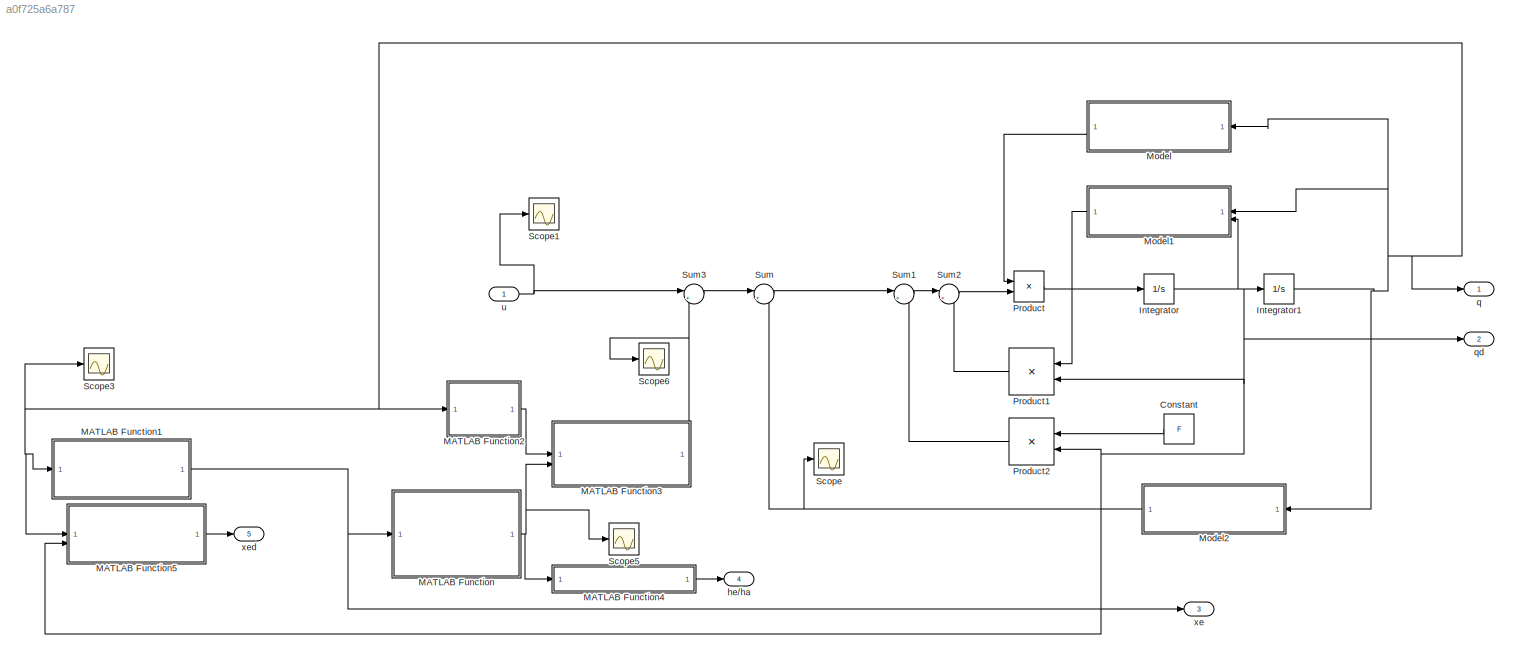
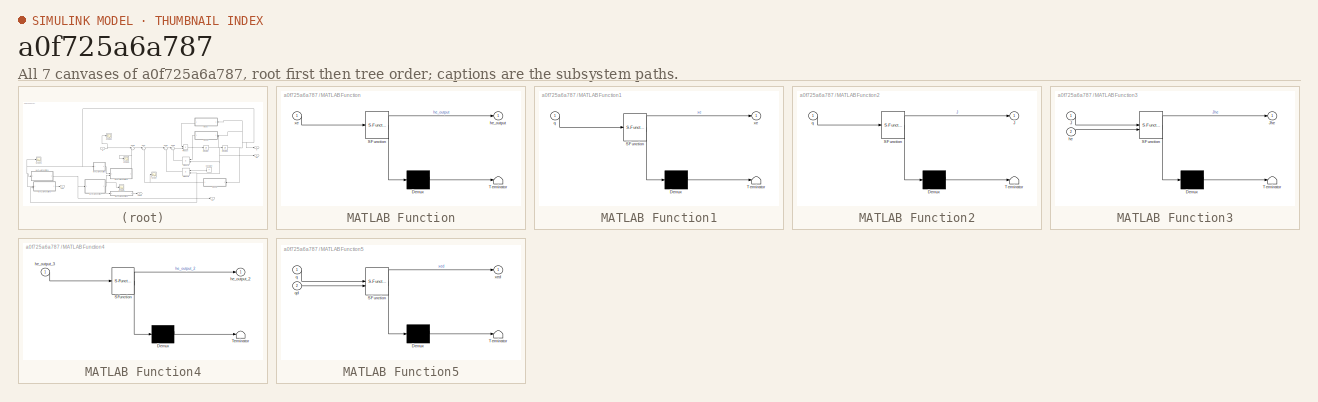
[diagram: thumbnail index - all 7 canvases of the model, root first then tree order]
MODEL slx_a0f725a6a787
KIND model
CONFIG AbsTol = auto
CONFIG EnableMultiTasking = off
CONFIG FixedStep = auto
CONFIG MaxStep = auto
CONFIG MinStep = auto
CONFIG RelTol = 1e-3
CONFIG SampleTimeConstraint = Unconstrained
CONFIG SolverName = VariableStepAuto
CONFIG StartTime = 0.0
CONFIG StopTime = 10.0
BLOCK [Constant] Constant
  Value = F
BLOCK [Integrator] Integrator
BLOCK [Integrator] Integrator1
  InitialCondition = init
BLOCK [SubSystem] MATLAB Function
  ErrorFcn = Stateflow.Translate.translate
  LibrarySourceBlock = simulink/User-Defined\nFunctions/MATLAB Function
  PermitHierarchicalResolution = ExplicitOnly
  SFBlockType = MATLAB Function
  TreatAsAtomicUnit = on
BLOCK [Demux] MATLAB Function/ Demux 
  Outputs = 1
BLOCK [S-Function] MATLAB Function/ SFunction 
  EnableBusSupport = on
  FunctionName = sf_sfun
  Parameters = kx,xr
  PortCounts = [1 2]
  SFcnIsStateOwnerBlock = off
  SFunctionDeploymentMode = off
  Tag = Stateflow S-Function 2
BLOCK [Terminator] MATLAB Function/ Terminator 
BLOCK [Outport] MATLAB Function/he_output
BLOCK [Inport] MATLAB Function/xe
BLOCK [SubSystem] MATLAB Function1
  ErrorFcn = Stateflow.Translate.translate
  LibrarySourceBlock = simulink/User-Defined\nFunctions/MATLAB Function
  PermitHierarchicalResolution = ExplicitOnly
  SFBlockType = MATLAB Function
  TreatAsAtomicUnit = on
BLOCK [Demux] MATLAB Function1/ Demux 
  Outputs = 1
BLOCK [S-Function] MATLAB Function1/ SFunction 
  EnableBusSupport = on
  FunctionName = sf_sfun
  Parameters = a_1,a_2
  PortCounts = [1 2]
  SFcnIsStateOwnerBlock = off
  SFunctionDeploymentMode = off
  Tag = Stateflow S-Function 1
BLOCK [Terminator] MATLAB Function1/ Terminator 
BLOCK [Inport] MATLAB Function1/q
BLOCK [Outport] MATLAB Function1/xe
BLOCK [SubSystem] MATLAB Function2
  ErrorFcn = Stateflow.Translate.translate
  LibrarySourceBlock = simulink/User-Defined\nFunctions/MATLAB Function
  PermitHierarchicalResolution = ExplicitOnly
  SFBlockType = MATLAB Function
  TreatAsAtomicUnit = on
BLOCK [Demux] MATLAB Function2/ Demux 
  Outputs = 1
BLOCK [S-Function] MATLAB Function2/ SFunction 
  EnableBusSupport = on
  FunctionName = sf_sfun
  Parameters = a_1,a_2
  PortCounts = [1 2]
  SFcnIsStateOwnerBlock = off
  SFunctionDeploymentMode = off
  Tag = Stateflow S-Function 3
BLOCK [Terminator] MATLAB Function2/ Terminator 
BLOCK [Outport] MATLAB Function2/J
BLOCK [Inport] MATLAB Function2/q
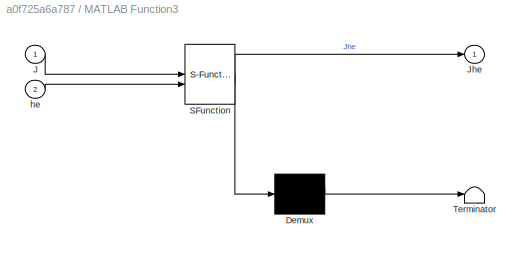
BLOCK [SubSystem] MATLAB Function3
  ErrorFcn = Stateflow.Translate.translate
  LibrarySourceBlock = simulink/User-Defined\nFunctions/MATLAB Function
  PermitHierarchicalResolution = ExplicitOnly
  SFBlockType = MATLAB Function
  TreatAsAtomicUnit = on
BLOCK [Demux] MATLAB Function3/ Demux 
  Outputs = 1
BLOCK [S-Function] MATLAB Function3/ SFunction 
  EnableBusSupport = on
  FunctionName = sf_sfun
  PortCounts = [2 2]
  SFcnIsStateOwnerBlock = off
  SFunctionDeploymentMode = off
  Tag = Stateflow S-Function 4
BLOCK [Terminator] MATLAB Function3/ Terminator 
BLOCK [Inport] MATLAB Function3/J
BLOCK [Outport] MATLAB Function3/Jhe
BLOCK [Inport] MATLAB Function3/he
  Port = 2
BLOCK [SubSystem] MATLAB Function4
  ErrorFcn = Stateflow.Translate.translate
  LibrarySourceBlock = simulink/User-Defined\nFunctions/MATLAB Function
  PermitHierarchicalResolution = ExplicitOnly
  SFBlockType = MATLAB Function
  TreatAsAtomicUnit = on
BLOCK [Demux] MATLAB Function4/ Demux 
  Outputs = 1
BLOCK [S-Function] MATLAB Function4/ SFunction 
  EnableBusSupport = on
  FunctionName = sf_sfun
  PortCounts = [1 2]
  SFcnIsStateOwnerBlock = off
  SFunctionDeploymentMode = off
  Tag = Stateflow S-Function 5
BLOCK [Terminator] MATLAB Function4/ Terminator 
BLOCK [Outport] MATLAB Function4/he_output_2
BLOCK [Inport] MATLAB Function4/he_output_3
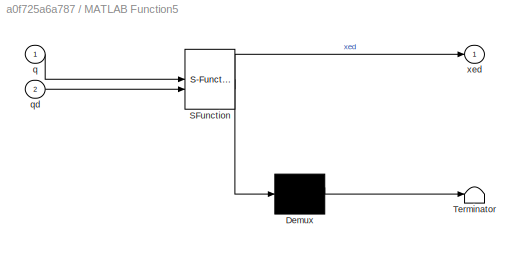
BLOCK [SubSystem] MATLAB Function5
  ErrorFcn = Stateflow.Translate.translate
  LibrarySourceBlock = simulink/User-Defined\nFunctions/MATLAB Function
  PermitHierarchicalResolution = ExplicitOnly
  SFBlockType = MATLAB Function
  TreatAsAtomicUnit = on
BLOCK [Demux] MATLAB Function5/ Demux 
  Outputs = 1
BLOCK [S-Function] MATLAB Function5/ SFunction 
  EnableBusSupport = on
  FunctionName = sf_sfun
  Parameters = a_1,a_2
  PortCounts = [2 2]
  SFcnIsStateOwnerBlock = off
  SFunctionDeploymentMode = off
  Tag = Stateflow S-Function 6
BLOCK [Terminator] MATLAB Function5/ Terminator 
BLOCK [Inport] MATLAB Function5/q
BLOCK [Inport] MATLAB Function5/qd
  Port = 2
BLOCK [Outport] MATLAB Function5/xed
BLOCK [ModelReference] Model
  ModelNameDialog = B_sim_matrix.slx
  ModelReferenceVersion = 13.0
BLOCK [ModelReference] Model1
  ModelNameDialog = C_sim_matrix.slx
  ModelReferenceVersion = 1.2
BLOCK [ModelReference] Model2
  ModelNameDialog = g_vector.slx
  ModelReferenceVersion = 1.8
BLOCK [Product] Product
  Multiplication = Matrix(*)
BLOCK [Product] Product1
  Multiplication = Matrix(*)
BLOCK [Product] Product2
  Multiplication = Matrix(*)
BLOCK [Scope] Scope
  Floating = off
  NumInputPorts = 1
  ScopeSpecificationString = Simulink.scopes.TimeScopeBlockCfg('CurrentConfiguration', extmgr.ConfigurationSet(extmgr.Configuration('Core','General UI',true),extmgr.Configuration('Core','Source UI',true),extmgr.Configuration('Sources','WiredSimulink',true,'DataLoggingLimitDataPoints',true,'DataLoggingSaveFormat','Array','DataLoggingDecimation','1','DataLoggingDecimateData',true,'DataLoggingVariableName','ScopeData1'),extmgr.C...<+1698ch>
BLOCK [Scope] Scope1
  Floating = off
  NumInputPorts = 1
  ScopeSpecificationString = Simulink.scopes.TimeScopeBlockCfg('CurrentConfiguration', extmgr.ConfigurationSet(extmgr.Configuration('Core','General UI',true),extmgr.Configuration('Core','Source UI',true),extmgr.Configuration('Sources','WiredSimulink',true,'DataLoggingVariableName','ScopeData2','DataLoggingLimitDataPoints',true,'DataLoggingSaveFormat','Array','DataLoggingDecimation','1','DataLoggingDecimateData',true),extmgr.C...<+899ch>
BLOCK [Scope] Scope3
  Floating = off
  NumInputPorts = 1
  ScopeSpecificationString = Simulink.scopes.TimeScopeBlockCfg('CurrentConfiguration', extmgr.ConfigurationSet(extmgr.Configuration('Core','General UI',true),extmgr.Configuration('Core','Source UI',true),extmgr.Configuration('Sources','WiredSimulink',true,'DataLoggingVariableName','ScopeData3'),extmgr.Configuration('Visuals','Time Domain',true,'SerializedDisplays',{struct('MinYLimReal','-2.32902','MaxYLimReal','4.36795','YLab...<+1417ch>
BLOCK [Scope] Scope5
  Floating = off
  NumInputPorts = 1
  ScopeSpecificationString = Simulink.scopes.TimeScopeBlockCfg('CurrentConfiguration', extmgr.ConfigurationSet(extmgr.Configuration('Core','General UI',true),extmgr.Configuration('Core','Source UI',true),extmgr.Configuration('Sources','WiredSimulink',true,'DataLoggingVariableName','ScopeData4'),extmgr.Configuration('Visuals','Time Domain',true,'SerializedDisplays',{struct('MinYLimReal','-22.98617','MaxYLimReal','208.82188','Y...<+1471ch>
BLOCK [Scope] Scope6
  Floating = off
  NumInputPorts = 1
  ScopeSpecificationString = Simulink.scopes.TimeScopeBlockCfg('CurrentConfiguration', extmgr.ConfigurationSet(extmgr.Configuration('Core','General UI',true),extmgr.Configuration('Core','Source UI',true),extmgr.Configuration('Sources','WiredSimulink',true),extmgr.Configuration('Visuals','Time Domain',true,'SerializedDisplays',{struct('MinYLimReal','-22.98617','MaxYLimReal','208.82188','YLabelReal','','MinYLimMag','0.00000','M...<+1416ch>
BLOCK [Sum] Sum
  Inputs = |+-
BLOCK [Sum] Sum1
  Inputs = |+-
BLOCK [Sum] Sum2
  Inputs = |+-
BLOCK [Sum] Sum3
  Inputs = |+-
BLOCK [Outport] he//ha
  Port = 4
  PortDimensions = 2
BLOCK [Outport] q
  PortDimensions = 2
BLOCK [Outport] qd
  Port = 2
  PortDimensions = 2
BLOCK [Inport] u
  PortDimensions = 2
BLOCK [Outport] xe
  Port = 3
  PortDimensions = 2
BLOCK [Outport] xed
  Port = 5
  PortDimensions = 2
LINE Constant:1 -> Product2:1
NET Integrator1:1 -> MATLAB Function1:1, MATLAB Function2:1, MATLAB Function5:1, Model1:1, Model2:1, Model:1, Scope3:1, q:1
NET Integrator:1 -> Integrator1:1, MATLAB Function5:2, Model1:2, Product1:2, Product2:2, qd:1
NET MATLAB Function1:1 -> MATLAB Function:1, xe:1
LINE MATLAB Function2:1 -> MATLAB Function3:1
NET MATLAB Function3:1 -> Scope6:1, Sum3:2
LINE MATLAB Function4:1 -> he//ha:1
LINE MATLAB Function5:1 -> xed:1
NET MATLAB Function:1 -> MATLAB Function3:2, MATLAB Function4:1, Scope5:1
LINE Model1:1 -> Product1:1
NET Model2:1 -> Scope:1, Sum:2
LINE Model:2 -> Product:1
LINE Product1:1 -> Sum2:2
LINE Product2:1 -> Sum1:2
LINE Product:1 -> Integrator:1
LINE Sum1:1 -> Sum2:1
LINE Sum2:1 -> Product:2
LINE Sum3:1 -> Sum:1
LINE Sum:1 -> Sum1:1
NET u:1 -> Scope1:1, Sum3:1
note: NET lines group one-source signal fan-out (src -> all destinations, sorted); 1:1 wires keep LINE
CHART MATLAB Function1 states=1 transitions=1
  STATE_LABEL 'eML_blk_kernel()'
  STATE_LABEL 'SCRIPT:\nfunction xe  = forwardKinematics(q,a_1, a_2)\n\n    t1 = q(1);\n    t2 = q(2);\n    t12 = t1+t2;\n    ct1 = cos(t1);\n    ct12 = cos(t1+t2);\n    st1 = sin(t1);\n    st12 = sin(t2+t1);\n    \n%     To3 = [ cos(t1+t2),-sin(t1+t2),0,a_1*cos(t1)+a_2*cos(t1+t2);\n%             sin(t1+t2),cos(t1+t2),0,a_1*sin(t1)+a_2*sin(t1+t2);\n%             0,0,1,0;\n%             0,0,0,1];\n% %     T3e = [0,0,1,0;\n% %   ...<+171ch>'
CHART MATLAB Function states=1 transitions=1
  STATE_LABEL 'eML_blk_kernel()'
  STATE_LABEL 'SCRIPT:\nfunction he_output  = he(xe,xr,kx)\n    he_output_scalar = 0;    \n    xe = xe(1);\n    if xe >= xr\n        he_output_scalar = kx*(xe-xr);\n    end\n\n    he_output_line = [he_output_scalar,0,0];\n    he_output = transpose(he_output_line);\nend\n'
CHART MATLAB Function2 states=1 transitions=1
  STATE_LABEL 'eML_blk_kernel()'
  STATE_LABEL 'SCRIPT:\nfunction J = fcn(q, a_1, a_2)\n    theta1 = q(1);\n    theta2 = q(2);\n    J = [-a_1*sin(theta1)-a_2*sin(theta1+theta2),-a_2*sin(theta1+theta2),0;\n        a_1*cos(theta1)+a_2*cos(theta1+theta2),a_2*cos(theta1+theta2),0;\n        0,0,0;\n        0,0,0;\n        0,0,0;\n        1,1,1;];\n\nend\n'
CHART MATLAB Function3 states=1 transitions=1
  STATE_LABEL 'eML_blk_kernel()'
  STATE_LABEL 'SCRIPT:\nfunction Jhe = MultiplyAndAccess(J,he)\n    J = transpose(J(1:2,1:2));\n    he = he(1:2,1);\n    Jhetemp = J*he;\n    Jhe = Jhetemp(1:2,1);\nend\n'
CHART MATLAB Function4 states=1 transitions=1
  STATE_LABEL 'eML_blk_kernel()'
  STATE_LABEL 'SCRIPT:\nfunction he_output_2  = red(he_output_3)\n    he_output_2 = [he_output_3(1);he_output_3(2)];\nend\n'
CHART MATLAB Function5 states=1 transitions=1
  STATE_LABEL 'eML_blk_kernel()'
  STATE_LABEL 'SCRIPT:\nfunction xed  = forwardKinematics(q,qd,a_1, a_2)\n\n    t1 = q(1);\n    t2 = q(2);\n    t12 = t1+t2;\n    t1d = qd(1);\n    t12d = qd(1)+qd(2);\n    ct1 = cos(t1);\n    ct12 = cos(t1+t2);\n    st1 = sin(t1);\n    st12 = sin(t2+t1);\n    \n%     To3 = [ cos(t1+t2),-sin(t1+t2),0,a_1*cos(t1)+a_2*cos(t1+t2);\n%             sin(t1+t2),cos(t1+t2),0,a_1*sin(t1)+a_2*sin(t1+t2);\n%             0,0,1,0;\n%        ...<+236ch>'
CHART  states=0 transitions=0
CHART  states=0 transitions=0
CHART  states=0 transitions=0
CHART  states=0 transitions=0
CHART  states=0 transitions=0
CHART  states=0 transitions=0
